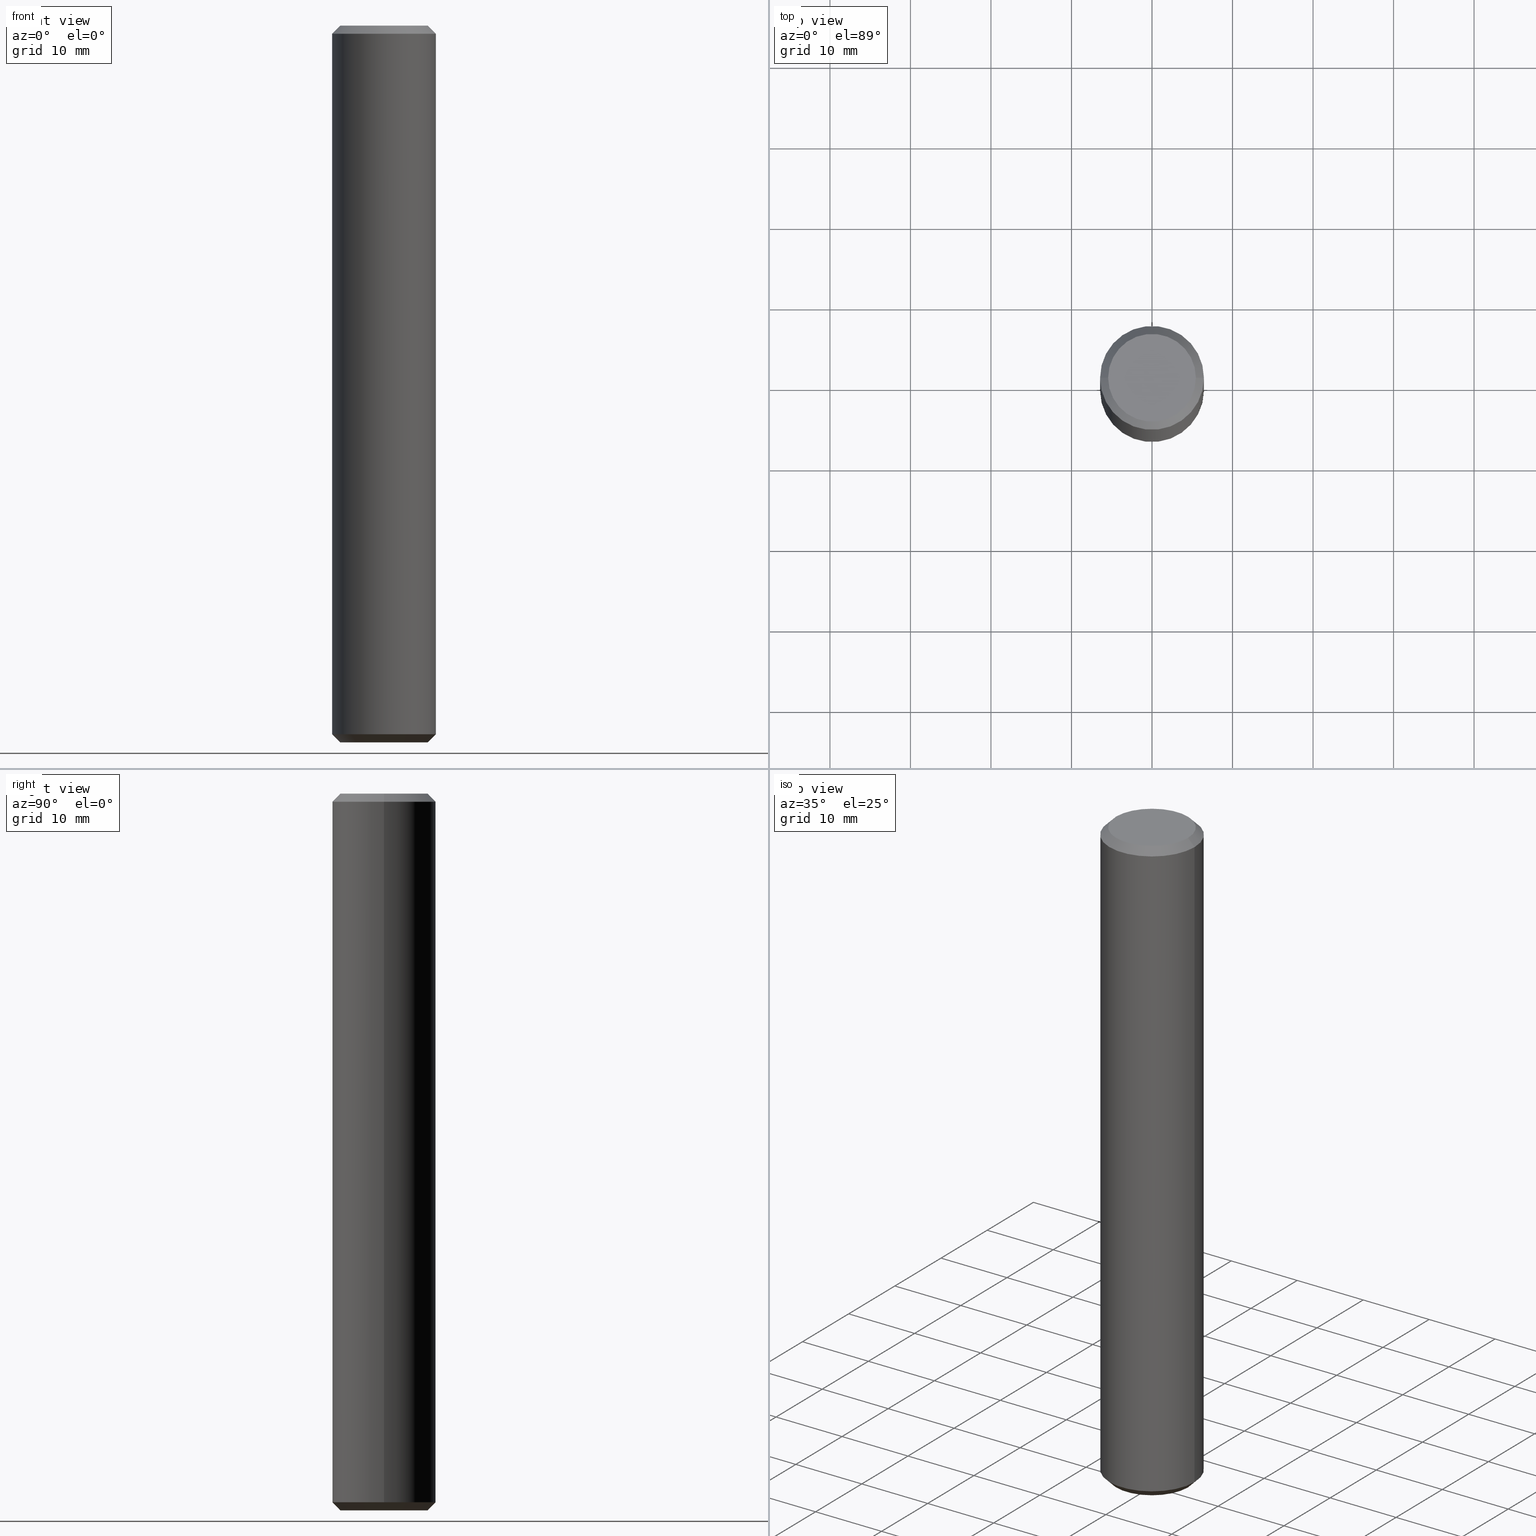
[diagram: canonical four-view strip — front | top / right | iso, engineering-drawing reading convention]
A machine part, canonical four-view strip (front | top / right | iso — engineering-drawing reading convention). The complete STEP part file that produces these views, byte-faithful:
ISO-10303-21;
HEADER;
FILE_DESCRIPTION (( 'STEP AP203' ),
    '1' );
FILE_NAME ('1-2_UNC-AT-90_REV_.step',
    '2026-01-09T02:51:55',
    ( '' ),
    ( '' ),
    'SwSTEP 2.0',
    'SolidWorks 2025',
    '' );
FILE_SCHEMA (( 'CONFIG_CONTROL_DESIGN' ));
ENDSEC;

DATA;
#1 = PERSON_AND_ORGANIZATION ( #159, #19 ) ;
#2 = AXIS2_PLACEMENT_3D ( 'NONE', #129, #216, #102 ) ;
#3 =( GEOMETRIC_REPRESENTATION_CONTEXT ( 3 ) GLOBAL_UNCERTAINTY_ASSIGNED_CONTEXT ( ( #68 ) ) GLOBAL_UNIT_ASSIGNED_CONTEXT ( ( #17, #157, #243 ) ) REPRESENTATION_CONTEXT ( 'NONE', 'WORKASPACE' ) );
#4 = EDGE_CURVE ( 'NONE', #65, #210, #22, .T. ) ;
#5 = DIRECTION ( 'NONE',  ( -1.000000000000000000, 0.000000000000000000, 0.000000000000000000 ) ) ;
#6 = DIRECTION ( 'NONE',  ( -0.000000000000000000, -0.000000000000000000, 1.000000000000000000 ) ) ;
#7 = ORIENTED_EDGE ( 'NONE', *, *, #109, .T. ) ;
#8 = CARTESIAN_POINT ( 'NONE',  ( 6.450000000000001066, 0.000000000000000000, 0.9999999999999870104 ) ) ;
#9 = DIRECTION ( 'NONE',  ( -0.000000000000000000, -0.000000000000000000, -1.000000000000000000 ) ) ;
#10 = APPROVAL ( #248, 'UNSPECIFIED' ) ;
#11 = PERSON_AND_ORGANIZATION_ROLE ( 'classification_officer' ) ;
#12 = LINE ( 'NONE', #263, #245 ) ;
#13 = CARTESIAN_POINT ( 'NONE',  ( 0.000000000000000000, 0.000000000000000000, 87.99999999999998579 ) ) ;
#14 = CARTESIAN_POINT ( 'NONE',  ( 5.450000000000003730, 0.000000000000000000, 0.000000000000000000 ) ) ;
#15 = CARTESIAN_POINT ( 'NONE',  ( -6.450000000000001066, 0.000000000000000000, 87.99999999999998579 ) ) ;
#16 = DIRECTION ( 'NONE',  ( -0.000000000000000000, -0.000000000000000000, -1.000000000000000000 ) ) ;
#17 =( LENGTH_UNIT ( ) NAMED_UNIT ( * ) SI_UNIT ( .MILLI., .METRE. ) );
#18 = APPROVAL_ROLE ( '' ) ;
#19 = ORGANIZATION ( 'UNSPECIFIED', 'UNSPECIFIED', '' ) ;
#20 = APPLICATION_PROTOCOL_DEFINITION ( 'international standard', 'config_control_design', 1994, #190 ) ;
#21 = CC_DESIGN_PERSON_AND_ORGANIZATION_ASSIGNMENT ( #82, #169, ( #35 ) ) ;
#22 = CIRCLE ( 'NONE', #106, 5.449999999999996625 ) ;
#23 = VECTOR ( 'NONE', #40, 1000.000000000000000 ) ;
#24 = EDGE_CURVE ( 'NONE', #65, #227, #31, .T. ) ;
#25 = CC_DESIGN_PERSON_AND_ORGANIZATION_ASSIGNMENT ( #265, #192, ( #35 ) ) ;
#26 = APPROVAL_ROLE ( '' ) ;
#27 = DIRECTION ( 'NONE',  ( 0.000000000000000000, 0.000000000000000000, 1.000000000000000000 ) ) ;
#28 = LINE ( 'NONE', #138, #156 ) ;
#29 = DIRECTION ( 'NONE',  ( 1.000000000000000000, 0.000000000000000000, 0.000000000000000000 ) ) ;
#30 = AXIS2_PLACEMENT_3D ( 'NONE', #56, #92, #184 ) ;
#31 = LINE ( 'NONE', #119, #59 ) ;
#32 = ORIENTED_EDGE ( 'NONE', *, *, #115, .F. ) ;
#33 = ADVANCED_FACE ( 'NONE', ( #58 ), #79, .T. ) ;
#34 = ADVANCED_BREP_SHAPE_REPRESENTATION ( '1-2_UNC-AT-90_REV_', ( #179, #231 ), #3 ) ;
#35 = PRODUCT_DEFINITION_FORMATION_WITH_SPECIFIED_SOURCE ( 'ANY', '', #174, .NOT_KNOWN. ) ;
#36 = CARTESIAN_POINT ( 'NONE',  ( 0.000000000000000000, 0.000000000000000000, 89.00000000000000000 ) ) ;
#37 = EDGE_CURVE ( 'NONE', #210, #122, #12, .T. ) ;
#38 = ORIENTED_EDGE ( 'NONE', *, *, #164, .T. ) ;
#39 = DIRECTION ( 'NONE',  ( 1.000000000000000000, 0.000000000000000000, -0.000000000000000000 ) ) ;
#40 = DIRECTION ( 'NONE',  ( -0.7071067811865512365, 8.659560562354979697E-17, 0.7071067811865439090 ) ) ;
#41 = ORIENTED_EDGE ( 'NONE', *, *, #272, .T. ) ;
#42 = CLOSED_SHELL ( 'NONE', ( #137, #88, #33, #233, #203, #153, #90, #149 ) ) ;
#43 = FACE_OUTER_BOUND ( 'NONE', #60, .T. ) ;
#44 = PRODUCT_DEFINITION ( 'UNKNOWN', '', #35, #226 ) ;
#45 = DIRECTION ( 'NONE',  ( 1.000000000000000000, 0.000000000000000000, 0.000000000000000000 ) ) ;
#46 = COORDINATED_UNIVERSAL_TIME_OFFSET ( 10, 0, .AHEAD. ) ;
#47 = EDGE_CURVE ( 'NONE', #122, #145, #28, .T. ) ;
#48 = AXIS2_PLACEMENT_3D ( 'NONE', #189, #6, #261 ) ;
#49 = DATE_AND_TIME ( #250, #267 ) ;
#50 = APPROVAL_DATE_TIME ( #120, #183 ) ;
#51 = ORIENTED_EDGE ( 'NONE', *, *, #24, .F. ) ;
#52 = APPROVAL_STATUS ( 'not_yet_approved' ) ;
#53 = CONICAL_SURFACE ( 'NONE', #48, 6.450000000000001066, 0.7853981633974533860 ) ;
#54 = EDGE_LOOP ( 'NONE', ( #130, #257, #142, #168 ) ) ;
#55 = EDGE_LOOP ( 'NONE', ( #213, #147, #78, #38 ) ) ;
#56 = CARTESIAN_POINT ( 'NONE',  ( 0.000000000000000000, 0.000000000000000000, 0.9999999999999870104 ) ) ;
#57 = ORIENTED_EDGE ( 'NONE', *, *, #164, .F. ) ;
#58 = FACE_OUTER_BOUND ( 'NONE', #54, .T. ) ;
#59 = VECTOR ( 'NONE', #187, 1000.000000000000000 ) ;
#60 = EDGE_LOOP ( 'NONE', ( #41, #7 ) ) ;
#61 = CIRCLE ( 'NONE', #64, 5.450000000000003730 ) ;
#62 = DIRECTION ( 'NONE',  ( 0.000000000000000000, 0.000000000000000000, 1.000000000000000000 ) ) ;
#63 = DIRECTION ( 'NONE',  ( -1.000000000000000000, 0.000000000000000000, 0.000000000000000000 ) ) ;
#64 = AXIS2_PLACEMENT_3D ( 'NONE', #185, #162, #163 ) ;
#65 = VERTEX_POINT ( 'NONE', #95 ) ;
#66 = DIRECTION ( 'NONE',  ( 0.000000000000000000, 0.000000000000000000, -1.000000000000000000 ) ) ;
#67 = ORIENTED_EDGE ( 'NONE', *, *, #182, .F. ) ;
#68 = UNCERTAINTY_MEASURE_WITH_UNIT (LENGTH_MEASURE( 1.000000000000000082E-05 ), #17, 'distance_accuracy_value', 'NONE');
#69 = DIRECTION ( 'NONE',  ( 0.000000000000000000, 0.000000000000000000, 1.000000000000000000 ) ) ;
#70 = EDGE_CURVE ( 'NONE', #145, #205, #224, .T. ) ;
#71 = APPROVAL_STATUS ( 'not_yet_approved' ) ;
#72 = CC_DESIGN_APPROVAL ( #183, ( #113 ) ) ;
#73 = CARTESIAN_POINT ( 'NONE',  ( 0.000000000000000000, 0.000000000000000000, 0.000000000000000000 ) ) ;
#74 = COORDINATED_UNIVERSAL_TIME_OFFSET ( 10, 0, .AHEAD. ) ;
#75 = FACE_OUTER_BOUND ( 'NONE', #236, .T. ) ;
#76 = DIRECTION ( 'NONE',  ( 1.000000000000000000, 0.000000000000000000, 0.000000000000000000 ) ) ;
#77 = ORIENTED_EDGE ( 'NONE', *, *, #37, .F. ) ;
#78 = ORIENTED_EDGE ( 'NONE', *, *, #194, .T. ) ;
#79 = CYLINDRICAL_SURFACE ( 'NONE', #96, 6.450000000000001066 ) ;
#80 = LOCAL_TIME ( 13, 51, 55.00000000000000000, #188 ) ;
#81 = ORIENTED_EDGE ( 'NONE', *, *, #93, .T. ) ;
#82 = PERSON_AND_ORGANIZATION ( #159, #19 ) ;
#83 = CARTESIAN_POINT ( 'NONE',  ( -6.450000000000001066, 7.898971854500429678E-16, 0.9999999999999870104 ) ) ;
#84 = DIRECTION ( 'NONE',  ( -0.000000000000000000, -0.000000000000000000, 1.000000000000000000 ) ) ;
#85 = LOCAL_TIME ( 13, 51, 55.00000000000000000, #46 ) ;
#86 = CARTESIAN_POINT ( 'NONE',  ( -6.450000000000001066, 0.000000000000000000, 89.00000000000000000 ) ) ;
#87 = FACE_OUTER_BOUND ( 'NONE', #253, .T. ) ;
#88 = ADVANCED_FACE ( 'NONE', ( #247 ), #220, .T. ) ;
#89 = CC_DESIGN_PERSON_AND_ORGANIZATION_ASSIGNMENT ( #133, #223, ( #44 ) ) ;
#90 = ADVANCED_FACE ( 'NONE', ( #75 ), #53, .T. ) ;
#91 = CIRCLE ( 'NONE', #254, 6.450000000000001066 ) ;
#92 = DIRECTION ( 'NONE',  ( -0.000000000000000000, -0.000000000000000000, 1.000000000000000000 ) ) ;
#93 = EDGE_CURVE ( 'NONE', #217, #145, #97, .T. ) ;
#94 = DIRECTION ( 'NONE',  ( -0.000000000000000000, -0.000000000000000000, 1.000000000000000000 ) ) ;
#95 = CARTESIAN_POINT ( 'NONE',  ( -5.449999999999996625, 0.000000000000000000, 89.00000000000000000 ) ) ;
#96 = AXIS2_PLACEMENT_3D ( 'NONE', #141, #124, #5 ) ;
#97 = LINE ( 'NONE', #8, #151 ) ;
#98 = AXIS2_PLACEMENT_3D ( 'NONE', #128, #16, #105 ) ;
#99 = ORIENTED_EDGE ( 'NONE', *, *, #70, .F. ) ;
#100 = CC_DESIGN_PERSON_AND_ORGANIZATION_ASSIGNMENT ( #1, #160, ( #174 ) ) ;
#101 = DIRECTION ( 'NONE',  ( 1.000000000000000000, 0.000000000000000000, 0.000000000000000000 ) ) ;
#102 = DIRECTION ( 'NONE',  ( -1.000000000000000000, 0.000000000000000000, 0.000000000000000000 ) ) ;
#103 = CC_DESIGN_SECURITY_CLASSIFICATION ( #113, ( #35 ) ) ;
#104 = ORIENTED_EDGE ( 'NONE', *, *, #4, .F. ) ;
#105 = DIRECTION ( 'NONE',  ( 1.000000000000000000, 0.000000000000000000, 0.000000000000000000 ) ) ;
#106 = AXIS2_PLACEMENT_3D ( 'NONE', #232, #27, #29 ) ;
#107 = CARTESIAN_POINT ( 'NONE',  ( 0.000000000000000000, 0.000000000000000000, 89.00000000000000000 ) ) ;
#108 = CONICAL_SURFACE ( 'NONE', #242, 5.449999999999996625, 0.7853981633974431720 ) ;
#109 = EDGE_CURVE ( 'NONE', #206, #217, #61, .T. ) ;
#110 = APPROVAL_PERSON_ORGANIZATION ( #246, #183, #262 ) ;
#111 = COORDINATED_UNIVERSAL_TIME_OFFSET ( 10, 0, .AHEAD. ) ;
#112 = DATE_AND_TIME ( #134, #117 ) ;
#113 = SECURITY_CLASSIFICATION ( '', '', #140 ) ;
#114 = DATE_AND_TIME ( #165, #80 ) ;
#115 = EDGE_CURVE ( 'NONE', #227, #122, #158, .T. ) ;
#116 = ORIENTED_EDGE ( 'NONE', *, *, #272, .F. ) ;
#117 = LOCAL_TIME ( 13, 51, 55.00000000000000000, #111 ) ;
#118 = CARTESIAN_POINT ( 'NONE',  ( 0.000000000000000000, 0.000000000000000000, 0.9999999999999870104 ) ) ;
#119 = CARTESIAN_POINT ( 'NONE',  ( -5.449999999999996625, 0.000000000000000000, 89.00000000000000000 ) ) ;
#120 = DATE_AND_TIME ( #234, #191 ) ;
#121 = ORIENTED_EDGE ( 'NONE', *, *, #93, .F. ) ;
#122 = VERTEX_POINT ( 'NONE', #143 ) ;
#123 = CIRCLE ( 'NONE', #98, 5.450000000000003730 ) ;
#124 = DIRECTION ( 'NONE',  ( -0.000000000000000000, -0.000000000000000000, -1.000000000000000000 ) ) ;
#125 = CC_DESIGN_DATE_AND_TIME_ASSIGNMENT ( #112, #144, ( #44 ) ) ;
#126 = AXIS2_PLACEMENT_3D ( 'NONE', #118, #94, #76 ) ;
#127 = CYLINDRICAL_SURFACE ( 'NONE', #2, 6.450000000000001066 ) ;
#128 = CARTESIAN_POINT ( 'NONE',  ( 0.000000000000000000, 0.000000000000000000, 0.000000000000000000 ) ) ;
#129 = CARTESIAN_POINT ( 'NONE',  ( 0.000000000000000000, 0.000000000000000000, 89.00000000000000000 ) ) ;
#130 = ORIENTED_EDGE ( 'NONE', *, *, #115, .T. ) ;
#131 = APPLICATION_PROTOCOL_DEFINITION ( 'international standard', 'config_control_design', 1994, #241 ) ;
#132 = AXIS2_PLACEMENT_3D ( 'NONE', #256, #62, #148 ) ;
#133 = PERSON_AND_ORGANIZATION ( #159, #19 ) ;
#134 = CALENDAR_DATE ( 2026, 9, 1 ) ;
#135 = CONICAL_SURFACE ( 'NONE', #200, 5.449999999999996625, 0.7853981633974431720 ) ;
#136 = COORDINATED_UNIVERSAL_TIME_OFFSET ( 10, 0, .AHEAD. ) ;
#137 = ADVANCED_FACE ( 'NONE', ( #266 ), #108, .T. ) ;
#138 = CARTESIAN_POINT ( 'NONE',  ( 6.450000000000001066, 7.898971854500429678E-16, 89.00000000000000000 ) ) ;
#139 = PRODUCT_DEFINITION_SHAPE ( 'NONE', 'NONE',  #44 ) ;
#140 = SECURITY_CLASSIFICATION_LEVEL ( 'unclassified' ) ;
#141 = CARTESIAN_POINT ( 'NONE',  ( 0.000000000000000000, 0.000000000000000000, 89.00000000000000000 ) ) ;
#142 = ORIENTED_EDGE ( 'NONE', *, *, #70, .T. ) ;
#143 = CARTESIAN_POINT ( 'NONE',  ( 6.450000000000001066, 7.898971854500429678E-16, 87.99999999999998579 ) ) ;
#144 = DATE_TIME_ROLE ( 'creation_date' ) ;
#145 = VERTEX_POINT ( 'NONE', #239 ) ;
#146 = VECTOR ( 'NONE', #212, 1000.000000000000000 ) ;
#147 = ORIENTED_EDGE ( 'NONE', *, *, #196, .T. ) ;
#148 = DIRECTION ( 'NONE',  ( 1.000000000000000000, 0.000000000000000000, -0.000000000000000000 ) ) ;
#149 = ADVANCED_FACE ( 'NONE', ( #87 ), #135, .T. ) ;
#150 = FACE_OUTER_BOUND ( 'NONE', #55, .T. ) ;
#151 = VECTOR ( 'NONE', #264, 1000.000000000000000 ) ;
#152 = DIRECTION ( 'NONE',  ( -1.000000000000000000, 0.000000000000000000, 0.000000000000000000 ) ) ;
#153 = ADVANCED_FACE ( 'NONE', ( #43 ), #238, .F. ) ;
#154 = AXIS2_PLACEMENT_3D ( 'NONE', #177, #84, #171 ) ;
#155 = APPROVAL_DATE_TIME ( #180, #229 ) ;
#156 = VECTOR ( 'NONE', #9, 1000.000000000000000 ) ;
#157 =( NAMED_UNIT ( * ) PLANE_ANGLE_UNIT ( ) SI_UNIT ( $, .RADIAN. ) );
#158 = CIRCLE ( 'NONE', #228, 6.450000000000001066 ) ;
#159 = PERSON ( 'UNSPECIFIED', 'UNSPECIFIED', 'UNSPECIFIED', ('UNSPECIFIED'), ('UNSPECIFIED'), ('UNSPECIFIED') ) ;
#160 = PERSON_AND_ORGANIZATION_ROLE ( 'design_owner' ) ;
#161 = DATE_TIME_ROLE ( 'classification_date' ) ;
#162 = DIRECTION ( 'NONE',  ( -0.000000000000000000, -0.000000000000000000, -1.000000000000000000 ) ) ;
#163 = DIRECTION ( 'NONE',  ( 1.000000000000000000, 0.000000000000000000, 0.000000000000000000 ) ) ;
#164 = EDGE_CURVE ( 'NONE', #205, #145, #181, .T. ) ;
#165 = CALENDAR_DATE ( 2026, 9, 1 ) ;
#166 = CARTESIAN_POINT ( 'NONE',  ( 0.000000000000000000, 0.000000000000000000, 87.99999999999998579 ) ) ;
#167 = DIRECTION ( 'NONE',  ( 1.000000000000000000, 0.000000000000000000, 0.000000000000000000 ) ) ;
#168 = ORIENTED_EDGE ( 'NONE', *, *, #194, .F. ) ;
#169 = PERSON_AND_ORGANIZATION_ROLE ( 'creator' ) ;
#170 = ORIENTED_EDGE ( 'NONE', *, *, #4, .T. ) ;
#171 = DIRECTION ( 'NONE',  ( 1.000000000000000000, 0.000000000000000000, 0.000000000000000000 ) ) ;
#172 = AXIS2_PLACEMENT_3D ( 'NONE', #198, #175, #219 ) ;
#173 = LINE ( 'NONE', #83, #23 ) ;
#174 = PRODUCT ( '1-2_UNC-AT-90_REV_', '1-2_UNC-AT-90_REV_', '', ( #202 ) ) ;
#175 = DIRECTION ( 'NONE',  ( 0.000000000000000000, 0.000000000000000000, 1.000000000000000000 ) ) ;
#176 = EDGE_LOOP ( 'NONE', ( #199, #249, #99, #121 ) ) ;
#177 = CARTESIAN_POINT ( 'NONE',  ( 0.000000000000000000, 0.000000000000000000, 0.9999999999999870104 ) ) ;
#178 = CALENDAR_DATE ( 2026, 9, 1 ) ;
#179 = MANIFOLD_SOLID_BREP ( 'Chamfer1', #42 ) ;
#180 = DATE_AND_TIME ( #178, #85 ) ;
#181 = CIRCLE ( 'NONE', #154, 6.450000000000001066 ) ;
#182 = EDGE_CURVE ( 'NONE', #206, #205, #173, .T. ) ;
#183 = APPROVAL ( #52, 'UNSPECIFIED' ) ;
#184 = DIRECTION ( 'NONE',  ( 1.000000000000000000, 0.000000000000000000, 0.000000000000000000 ) ) ;
#185 = CARTESIAN_POINT ( 'NONE',  ( 0.000000000000000000, 0.000000000000000000, 0.000000000000000000 ) ) ;
#186 = SHAPE_DEFINITION_REPRESENTATION ( #139, #34 ) ;
#187 = DIRECTION ( 'NONE',  ( -0.7071067811865439090, 0.000000000000000000, -0.7071067811865512365 ) ) ;
#188 = COORDINATED_UNIVERSAL_TIME_OFFSET ( 10, 0, .AHEAD. ) ;
#189 = CARTESIAN_POINT ( 'NONE',  ( 0.000000000000000000, 0.000000000000000000, 0.9999999999999870104 ) ) ;
#190 = APPLICATION_CONTEXT ( 'configuration controlled 3d designs of mechanical parts and assemblies' ) ;
#191 = LOCAL_TIME ( 13, 51, 55.00000000000000000, #136 ) ;
#192 = PERSON_AND_ORGANIZATION_ROLE ( 'design_supplier' ) ;
#193 = EDGE_LOOP ( 'NONE', ( #170, #252 ) ) ;
#194 = EDGE_CURVE ( 'NONE', #227, #205, #218, .T. ) ;
#195 = FACE_OUTER_BOUND ( 'NONE', #193, .T. ) ;
#196 = EDGE_CURVE ( 'NONE', #122, #227, #91, .T. ) ;
#197 = CC_DESIGN_APPROVAL ( #10, ( #35 ) ) ;
#198 = CARTESIAN_POINT ( 'NONE',  ( 0.000000000000000000, 0.000000000000000000, 89.00000000000000000 ) ) ;
#199 = ORIENTED_EDGE ( 'NONE', *, *, #109, .F. ) ;
#200 = AXIS2_PLACEMENT_3D ( 'NONE', #36, #258, #152 ) ;
#201 = CARTESIAN_POINT ( 'NONE',  ( -6.450000000000001066, 0.000000000000000000, 0.9999999999999870104 ) ) ;
#202 = MECHANICAL_CONTEXT ( 'NONE', #190, 'mechanical' ) ;
#203 = ADVANCED_FACE ( 'NONE', ( #195 ), #255, .T. ) ;
#204 = AXIS2_PLACEMENT_3D ( 'NONE', #274, #69, #39 ) ;
#205 = VERTEX_POINT ( 'NONE', #201 ) ;
#206 = VERTEX_POINT ( 'NONE', #237 ) ;
#207 = ORIENTED_EDGE ( 'NONE', *, *, #240, .F. ) ;
#208 = ORIENTED_EDGE ( 'NONE', *, *, #196, .F. ) ;
#209 = PERSON_AND_ORGANIZATION ( #159, #19 ) ;
#210 = VERTEX_POINT ( 'NONE', #214 ) ;
#211 = APPROVAL_PERSON_ORGANIZATION ( #221, #229, #18 ) ;
#212 = DIRECTION ( 'NONE',  ( -0.000000000000000000, -0.000000000000000000, -1.000000000000000000 ) ) ;
#213 = ORIENTED_EDGE ( 'NONE', *, *, #47, .F. ) ;
#214 = CARTESIAN_POINT ( 'NONE',  ( 5.449999999999996625, 7.286648454926749993E-16, 89.00000000000000000 ) ) ;
#215 = CIRCLE ( 'NONE', #172, 5.449999999999996625 ) ;
#216 = DIRECTION ( 'NONE',  ( -0.000000000000000000, -0.000000000000000000, -1.000000000000000000 ) ) ;
#217 = VERTEX_POINT ( 'NONE', #14 ) ;
#218 = LINE ( 'NONE', #86, #146 ) ;
#219 = DIRECTION ( 'NONE',  ( 1.000000000000000000, 0.000000000000000000, 0.000000000000000000 ) ) ;
#220 = CONICAL_SURFACE ( 'NONE', #126, 6.450000000000001066, 0.7853981633974533860 ) ;
#221 = PERSON_AND_ORGANIZATION ( #159, #19 ) ;
#222 = DIRECTION ( 'NONE',  ( 0.000000000000000000, 0.000000000000000000, 1.000000000000000000 ) ) ;
#223 = PERSON_AND_ORGANIZATION_ROLE ( 'creator' ) ;
#224 = CIRCLE ( 'NONE', #30, 6.450000000000001066 ) ;
#225 = CC_DESIGN_PERSON_AND_ORGANIZATION_ASSIGNMENT ( #209, #11, ( #113 ) ) ;
#226 = DESIGN_CONTEXT ( 'detailed design', #241, 'design' ) ;
#227 = VERTEX_POINT ( 'NONE', #15 ) ;
#228 = AXIS2_PLACEMENT_3D ( 'NONE', #166, #251, #167 ) ;
#229 = APPROVAL ( #71, 'UNSPECIFIED' ) ;
#230 = DIRECTION ( 'NONE',  ( 0.7071067811865439090, 8.659560562354889717E-17, -0.7071067811865512365 ) ) ;
#231 = AXIS2_PLACEMENT_3D ( 'NONE', #73, #222, #45 ) ;
#232 = CARTESIAN_POINT ( 'NONE',  ( 0.000000000000000000, 0.000000000000000000, 89.00000000000000000 ) ) ;
#233 = ADVANCED_FACE ( 'NONE', ( #150 ), #127, .T. ) ;
#234 = CALENDAR_DATE ( 2026, 9, 1 ) ;
#235 = ORIENTED_EDGE ( 'NONE', *, *, #24, .T. ) ;
#236 = EDGE_LOOP ( 'NONE', ( #67, #116, #81, #57 ) ) ;
#237 = CARTESIAN_POINT ( 'NONE',  ( -5.450000000000003730, 7.286648454926753937E-16, 0.000000000000000000 ) ) ;
#238 = PLANE ( 'NONE',  #204 ) ;
#239 = CARTESIAN_POINT ( 'NONE',  ( 6.450000000000001066, 7.898971854500429678E-16, 0.9999999999999870104 ) ) ;
#240 = EDGE_CURVE ( 'NONE', #210, #65, #215, .T. ) ;
#241 = APPLICATION_CONTEXT ( 'configuration controlled 3d designs of mechanical parts and assemblies' ) ;
#242 = AXIS2_PLACEMENT_3D ( 'NONE', #107, #271, #63 ) ;
#243 =( NAMED_UNIT ( * ) SI_UNIT ( $, .STERADIAN. ) SOLID_ANGLE_UNIT ( ) );
#244 = CC_DESIGN_APPROVAL ( #229, ( #44 ) ) ;
#245 = VECTOR ( 'NONE', #230, 1000.000000000000000 ) ;
#246 = PERSON_AND_ORGANIZATION ( #159, #19 ) ;
#247 = FACE_OUTER_BOUND ( 'NONE', #176, .T. ) ;
#248 = APPROVAL_STATUS ( 'not_yet_approved' ) ;
#249 = ORIENTED_EDGE ( 'NONE', *, *, #182, .T. ) ;
#250 = CALENDAR_DATE ( 2026, 9, 1 ) ;
#251 = DIRECTION ( 'NONE',  ( 0.000000000000000000, 0.000000000000000000, -1.000000000000000000 ) ) ;
#252 = ORIENTED_EDGE ( 'NONE', *, *, #240, .T. ) ;
#253 = EDGE_LOOP ( 'NONE', ( #77, #104, #235, #208 ) ) ;
#254 = AXIS2_PLACEMENT_3D ( 'NONE', #13, #66, #101 ) ;
#255 = PLANE ( 'NONE',  #132 ) ;
#256 = CARTESIAN_POINT ( 'NONE',  ( 0.000000000000000000, 0.000000000000000000, 89.00000000000000000 ) ) ;
#257 = ORIENTED_EDGE ( 'NONE', *, *, #47, .T. ) ;
#258 = DIRECTION ( 'NONE',  ( 0.000000000000000000, 0.000000000000000000, -1.000000000000000000 ) ) ;
#259 = PRODUCT_RELATED_PRODUCT_CATEGORY ( 'detail', '', ( #174 ) ) ;
#260 = PERSON_AND_ORGANIZATION ( #159, #19 ) ;
#261 = DIRECTION ( 'NONE',  ( 1.000000000000000000, 0.000000000000000000, 0.000000000000000000 ) ) ;
#262 = APPROVAL_ROLE ( '' ) ;
#263 = CARTESIAN_POINT ( 'NONE',  ( 5.449999999999996625, 6.674325055353071294E-16, 89.00000000000000000 ) ) ;
#264 = DIRECTION ( 'NONE',  ( 0.7071067811865512365, 0.000000000000000000, 0.7071067811865439090 ) ) ;
#265 = PERSON_AND_ORGANIZATION ( #159, #19 ) ;
#266 = FACE_OUTER_BOUND ( 'NONE', #268, .T. ) ;
#267 = LOCAL_TIME ( 13, 51, 55.00000000000000000, #74 ) ;
#268 = EDGE_LOOP ( 'NONE', ( #207, #270, #32, #51 ) ) ;
#269 = APPROVAL_DATE_TIME ( #114, #10 ) ;
#270 = ORIENTED_EDGE ( 'NONE', *, *, #37, .T. ) ;
#271 = DIRECTION ( 'NONE',  ( 0.000000000000000000, 0.000000000000000000, -1.000000000000000000 ) ) ;
#272 = EDGE_CURVE ( 'NONE', #217, #206, #123, .T. ) ;
#273 = APPROVAL_PERSON_ORGANIZATION ( #260, #10, #26 ) ;
#274 = CARTESIAN_POINT ( 'NONE',  ( 0.000000000000000000, 0.000000000000000000, 0.000000000000000000 ) ) ;
#275 = CC_DESIGN_DATE_AND_TIME_ASSIGNMENT ( #49, #161, ( #113 ) ) ;
ENDSEC;
END-ISO-10303-21;
